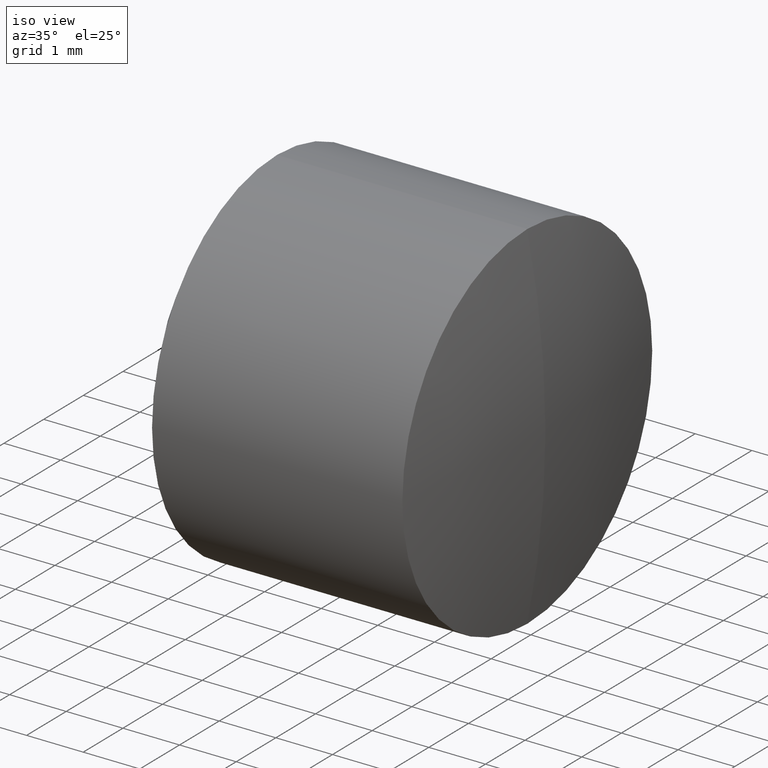
[diagram: clean part render]
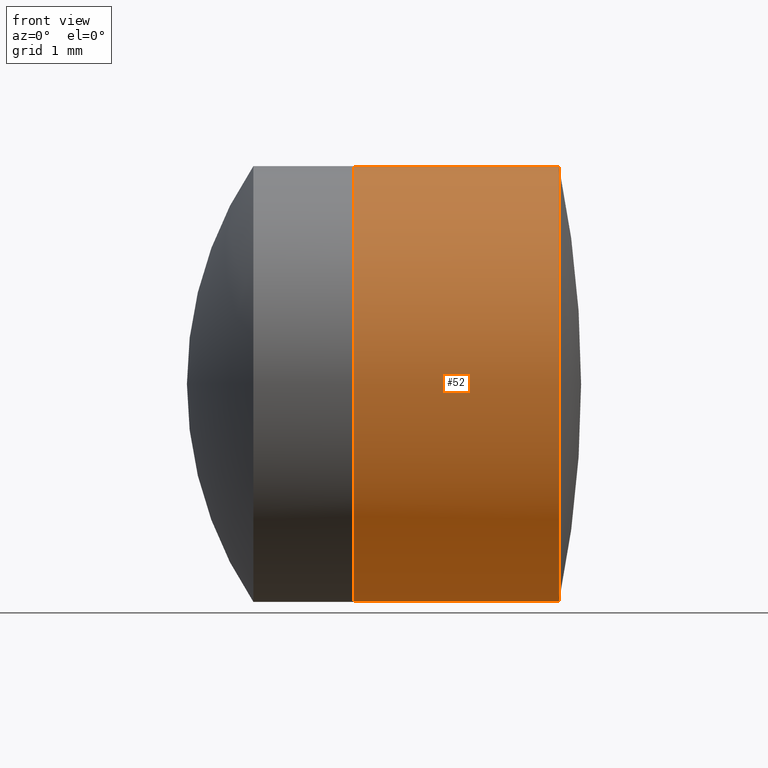
[diagram: tour spotlight — one face highlighted and labeled with its STEP entity id]
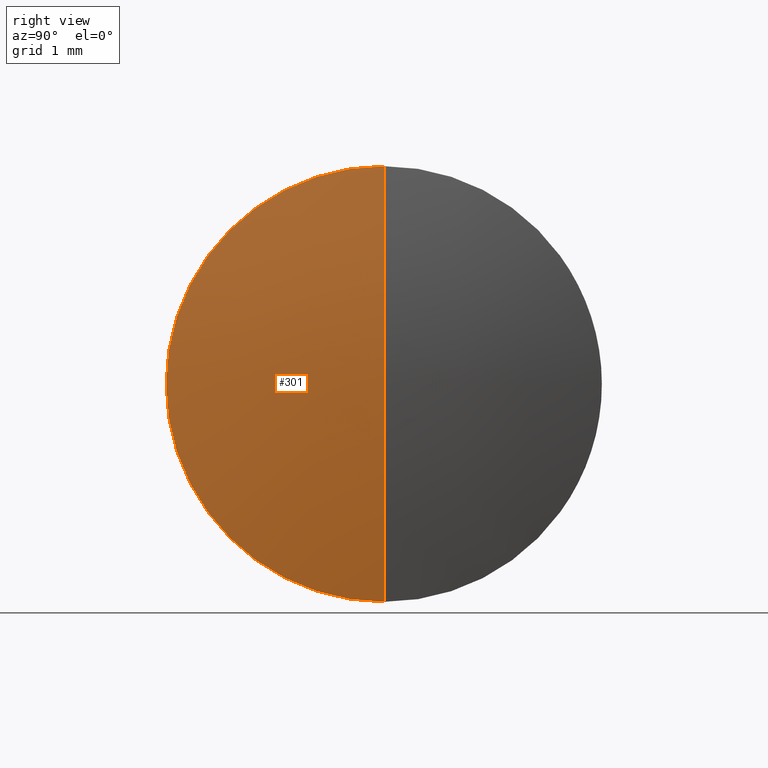
[diagram: tour spotlight — one face highlighted and labeled with its STEP entity id]
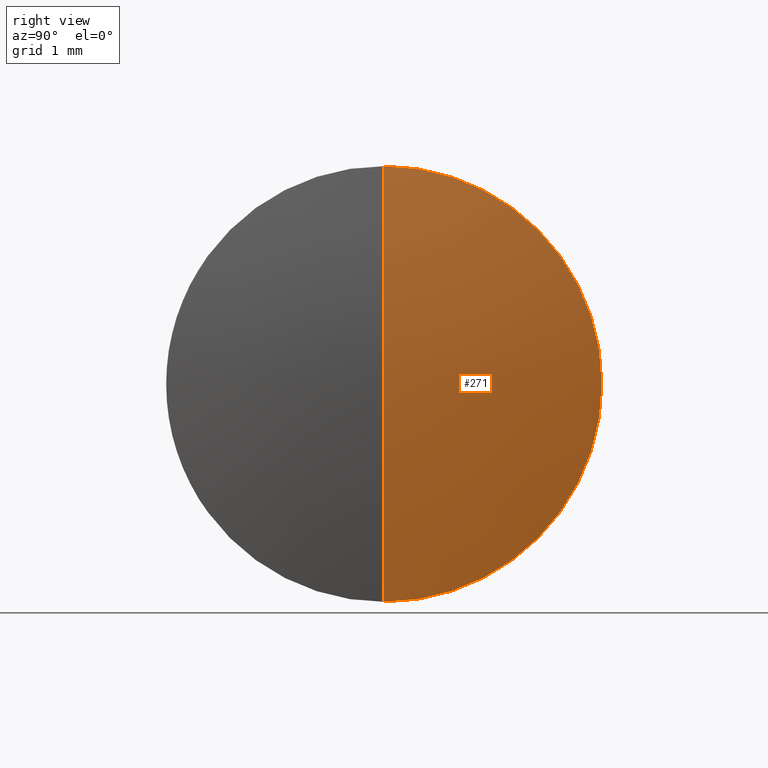
[diagram: tour spotlight — one face highlighted and labeled with its STEP entity id]
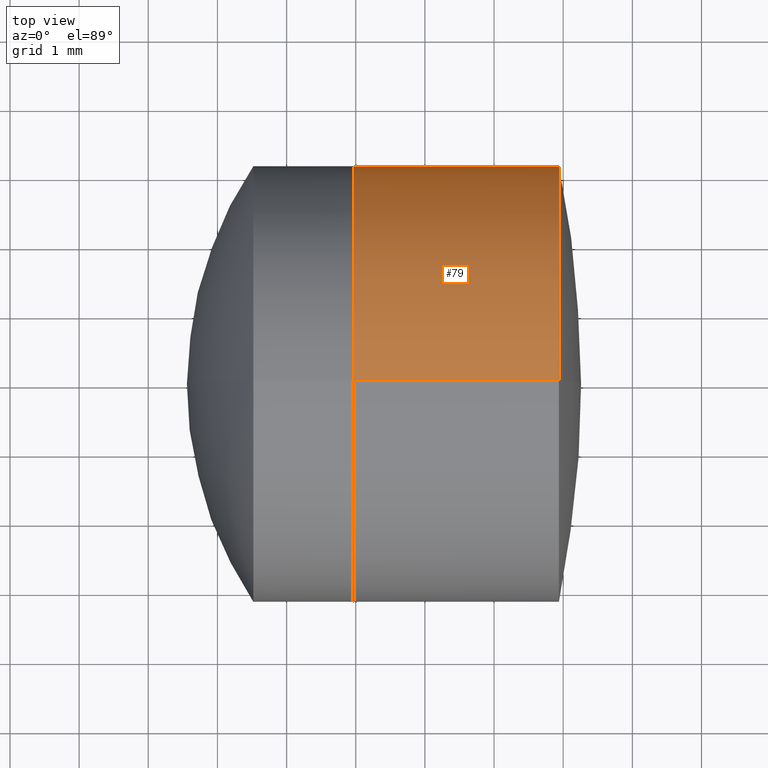
[diagram: tour spotlight — one face highlighted and labeled with its STEP entity id]
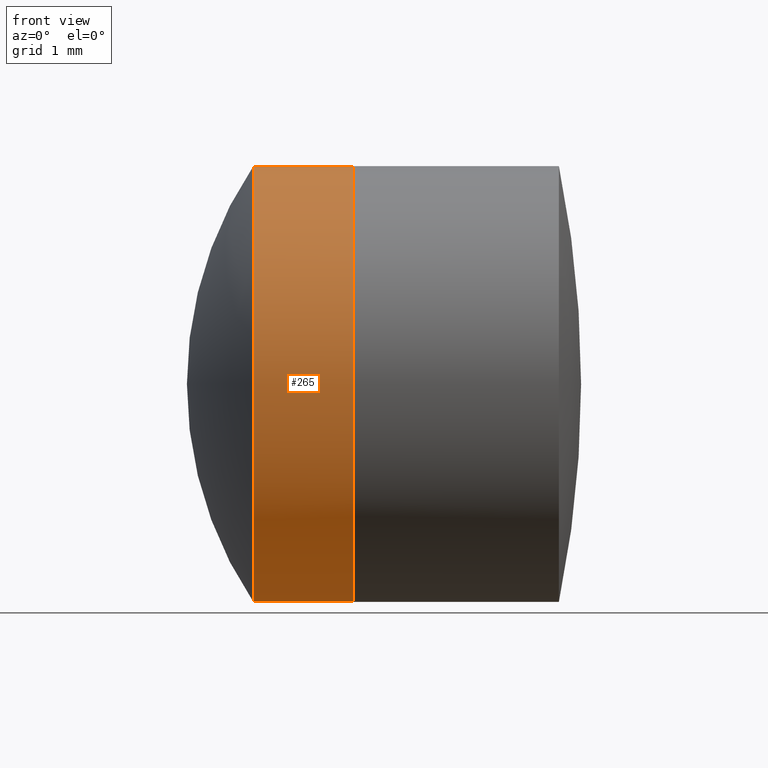
[diagram: tour spotlight — one face highlighted and labeled with its STEP entity id]
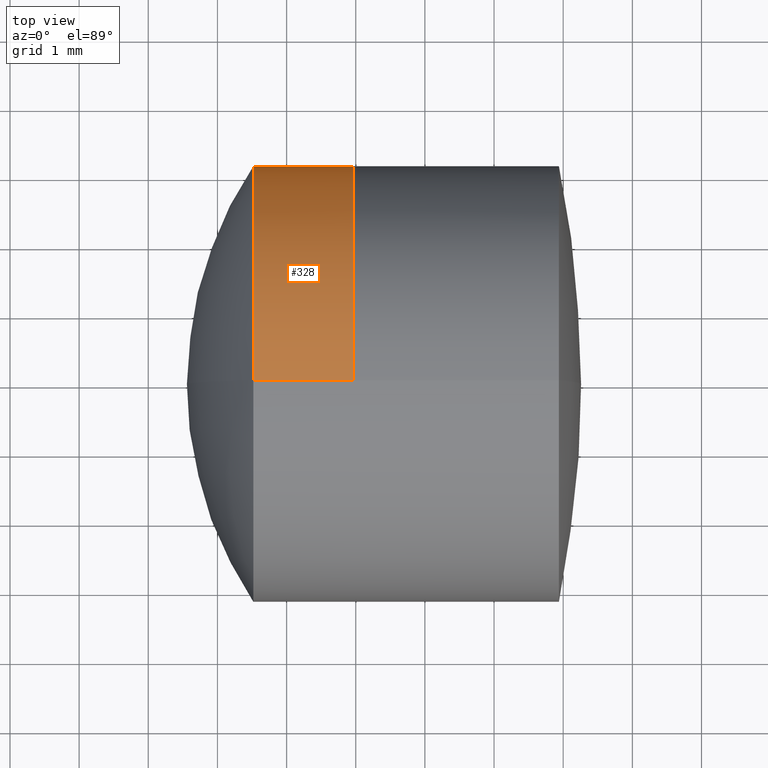
[diagram: tour spotlight — one face highlighted and labeled with its STEP entity id]
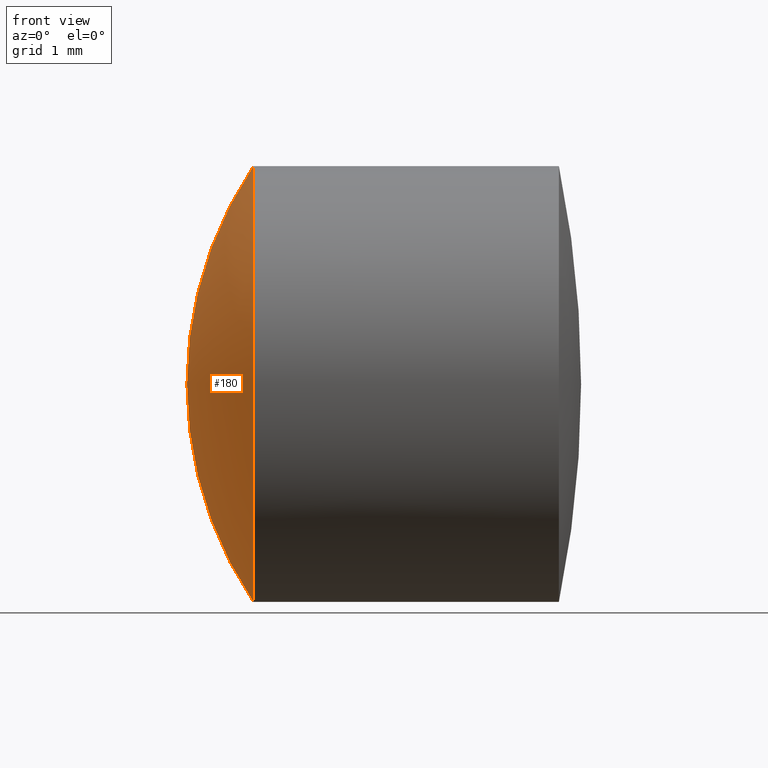
[diagram: tour spotlight — one face highlighted and labeled with its STEP entity id]
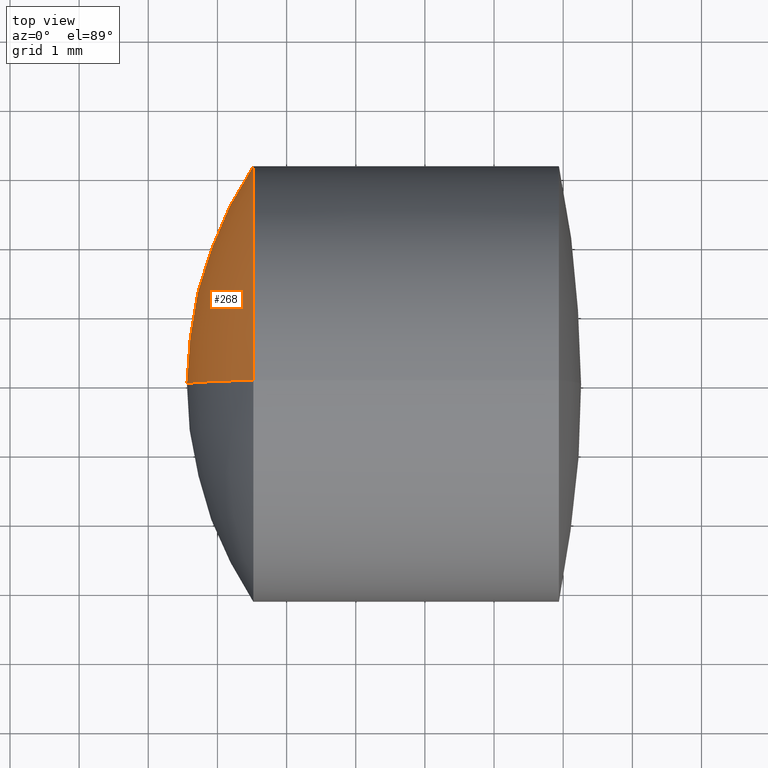
[diagram: tour spotlight — one face highlighted and labeled with its STEP entity id]
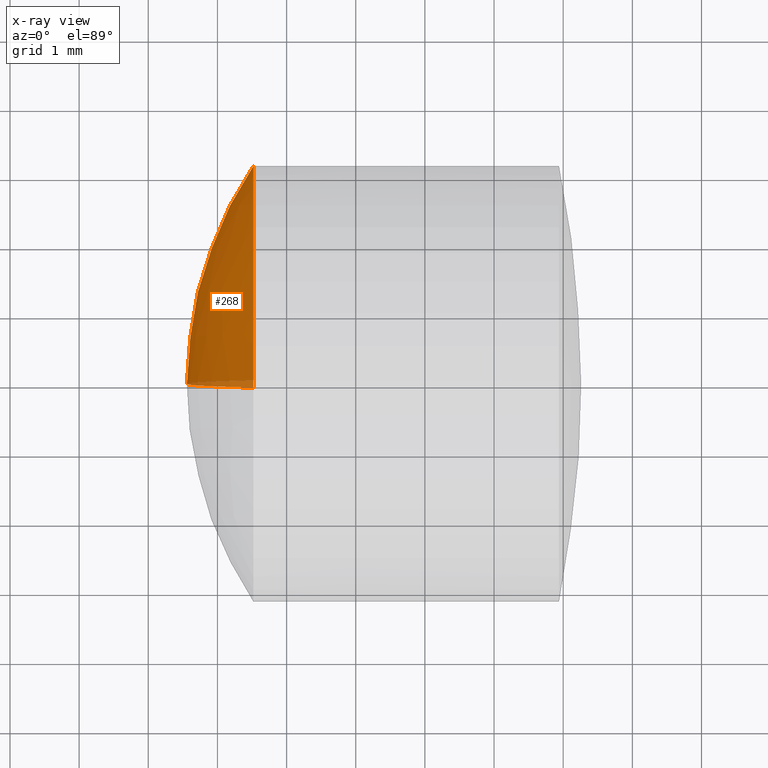
[diagram: x-ray of the same camera — body ghosted, this tour face saturated]
A machine part: a face-by-face anatomy tour. The part has 12 B-rep faces; the first image is the clean iso view, then the 8 largest visible faces are spotlighted one at a time (largest first), each with its STEP entity span.

Face 1 — front view, entity #52. In plain terms, the highlighted cylindrical surface (partial cylindrical patch) has radius 3.15 mm, axis along (-1, -0, -0).
Definition (entity closure, byte-faithful):
#23 = CYLINDRICAL_SURFACE ( 'NONE', #291, 3.150000000000000800 ) ;
#27 = EDGE_LOOP ( 'NONE', ( #131, #110, #115, #69 ) ) ;
#28 = LINE ( 'NONE', #72, #119 ) ;
#49 = DIRECTION ( 'NONE',  ( -1.000000000000000000, -0.0000000000000000000, -0.0000000000000000000 ) ) ;
#50 = CARTESIAN_POINT ( 'NONE',  ( 5.937916583646074100, 3.857637417314163200E-016, -3.150000000000000400 ) ) ;
#52 = ADVANCED_FACE ( 'NONE', ( #247 ), #23, .T. ) ;
#56 = DIRECTION ( 'NONE',  ( -1.000000000000000000, -0.0000000000000000000, -0.0000000000000000000 ) ) ;
#69 = ORIENTED_EDGE ( 'NONE', *, *, #298, .F. ) ;
#72 = CARTESIAN_POINT ( 'NONE',  ( -0.5519199926577972300, 0.0000000000000000000, 3.150000000000000800 ) ) ;
#87 = AXIS2_PLACEMENT_3D ( 'NONE', #121, #323, #155 ) ;
#92 = CARTESIAN_POINT ( 'NONE',  ( 2.966073281700091900, 3.857637417314163700E-016, -3.150000000000000800 ) ) ;
#104 = VERTEX_POINT ( 'NONE', #188 ) ;
#109 = EDGE_CURVE ( 'NONE', #334, #176, #171, .T. ) ;
#110 = ORIENTED_EDGE ( 'NONE', *, *, #269, .T. ) ;
#115 = ORIENTED_EDGE ( 'NONE', *, *, #251, .T. ) ;
#119 = VECTOR ( 'NONE', #223, 1000.000000000000000 ) ;
#121 = CARTESIAN_POINT ( 'NONE',  ( 5.937916583646074100, 0.0000000000000000000, 0.0000000000000000000 ) ) ;
#131 = ORIENTED_EDGE ( 'NONE', *, *, #109, .F. ) ;
#142 = DIRECTION ( 'NONE',  ( -1.000000000000000000, -0.0000000000000000000, -0.0000000000000000000 ) ) ;
#155 = DIRECTION ( 'NONE',  ( 0.0000000000000000000, 0.0000000000000000000, 1.000000000000000000 ) ) ;
#162 = AXIS2_PLACEMENT_3D ( 'NONE', #203, #49, #237 ) ;
#167 = CARTESIAN_POINT ( 'NONE',  ( -0.5519199926577972300, 3.857637417314163700E-016, -3.150000000000000800 ) ) ;
#171 = LINE ( 'NONE', #167, #184 ) ;
#172 = CARTESIAN_POINT ( 'NONE',  ( -0.5519199926577972300, 0.0000000000000000000, 0.0000000000000000000 ) ) ;
#176 = VERTEX_POINT ( 'NONE', #92 ) ;
#184 = VECTOR ( 'NONE', #142, 1000.000000000000000 ) ;
#188 = CARTESIAN_POINT ( 'NONE',  ( 5.937916583646074100, 0.0000000000000000000, 3.150000000000000400 ) ) ;
#203 = CARTESIAN_POINT ( 'NONE',  ( 2.966073281700091900, 0.0000000000000000000, 0.0000000000000000000 ) ) ;
#207 = VERTEX_POINT ( 'NONE', #337 ) ;
#211 = CIRCLE ( 'NONE', #162, 3.150000000000000800 ) ;
#220 = CIRCLE ( 'NONE', #87, 3.150000000000000400 ) ;
#223 = DIRECTION ( 'NONE',  ( -1.000000000000000000, -0.0000000000000000000, -0.0000000000000000000 ) ) ;
#237 = DIRECTION ( 'NONE',  ( 0.0000000000000000000, 0.0000000000000000000, 1.000000000000000000 ) ) ;
#247 = FACE_OUTER_BOUND ( 'NONE', #27, .T. ) ;
#251 = EDGE_CURVE ( 'NONE', #104, #207, #28, .T. ) ;
#258 = DIRECTION ( 'NONE',  ( 0.0000000000000000000, 0.0000000000000000000, 1.000000000000000000 ) ) ;
#269 = EDGE_CURVE ( 'NONE', #334, #104, #220, .T. ) ;
#291 = AXIS2_PLACEMENT_3D ( 'NONE', #172, #56, #258 ) ;
#298 = EDGE_CURVE ( 'NONE', #176, #207, #211, .T. ) ;
#323 = DIRECTION ( 'NONE',  ( -1.000000000000000000, -0.0000000000000000000, -0.0000000000000000000 ) ) ;
#334 = VERTEX_POINT ( 'NONE', #50 ) ;
#337 = CARTESIAN_POINT ( 'NONE',  ( 2.966073281700091900, 0.0000000000000000000, 3.150000000000000800 ) ) ;

Face 2 — right view, entity #301. In plain terms, the highlighted spherical surface has radius 15.631 mm.
Definition (entity closure, byte-faithful):
#6 = VERTEX_POINT ( 'NONE', #38 ) ;
#17 = CARTESIAN_POINT ( 'NONE',  ( -9.372395660067310200, 0.0000000000000000000, 0.0000000000000000000 ) ) ;
#22 = DIRECTION ( 'NONE',  ( 0.0000000000000000000, 1.000000000000000000, 0.0000000000000000000 ) ) ;
#38 = CARTESIAN_POINT ( 'NONE',  ( 6.258604339932689200, 0.0000000000000000000, 9.571227058736139200E-016 ) ) ;
#47 = DIRECTION ( 'NONE',  ( 0.0000000000000000000, -1.224646799147353500E-016, 1.000000000000000000 ) ) ;
#50 = CARTESIAN_POINT ( 'NONE',  ( 5.937916583646074100, 3.857637417314163200E-016, -3.150000000000000400 ) ) ;
#53 = AXIS2_PLACEMENT_3D ( 'NONE', #261, #97, #292 ) ;
#73 = ORIENTED_EDGE ( 'NONE', *, *, #269, .F. ) ;
#75 = DIRECTION ( 'NONE',  ( 0.0000000000000000000, 0.0000000000000000000, 1.000000000000000000 ) ) ;
#80 = FACE_OUTER_BOUND ( 'NONE', #221, .T. ) ;
#87 = AXIS2_PLACEMENT_3D ( 'NONE', #121, #323, #155 ) ;
#90 = ORIENTED_EDGE ( 'NONE', *, *, #245, .F. ) ;
#97 = DIRECTION ( 'NONE',  ( 0.0000000000000000000, -1.000000000000000000, 0.0000000000000000000 ) ) ;
#104 = VERTEX_POINT ( 'NONE', #188 ) ;
#121 = CARTESIAN_POINT ( 'NONE',  ( 5.937916583646074100, 0.0000000000000000000, 0.0000000000000000000 ) ) ;
#122 = CARTESIAN_POINT ( 'NONE',  ( -9.372395660067310200, 0.0000000000000000000, 0.0000000000000000000 ) ) ;
#155 = DIRECTION ( 'NONE',  ( 0.0000000000000000000, 0.0000000000000000000, 1.000000000000000000 ) ) ;
#187 = AXIS2_PLACEMENT_3D ( 'NONE', #122, #22, #75 ) ;
#188 = CARTESIAN_POINT ( 'NONE',  ( 5.937916583646074100, 0.0000000000000000000, 3.150000000000000400 ) ) ;
#198 = CIRCLE ( 'NONE', #53, 15.63099999999999800 ) ;
#199 = DIRECTION ( 'NONE',  ( -0.0000000000000000000, 1.000000000000000000, 1.224646799147353200E-016 ) ) ;
#201 = SPHERICAL_SURFACE ( 'NONE', #187, 15.63099999999999800 ) ;
#204 = CIRCLE ( 'NONE', #242, 15.63099999999999800 ) ;
#220 = CIRCLE ( 'NONE', #87, 3.150000000000000400 ) ;
#221 = EDGE_LOOP ( 'NONE', ( #90, #295, #73 ) ) ;
#242 = AXIS2_PLACEMENT_3D ( 'NONE', #17, #199, #47 ) ;
#245 = EDGE_CURVE ( 'NONE', #6, #334, #204, .T. ) ;
#246 = EDGE_CURVE ( 'NONE', #6, #104, #198, .T. ) ;
#261 = CARTESIAN_POINT ( 'NONE',  ( -9.372395660067310200, 0.0000000000000000000, 0.0000000000000000000 ) ) ;
#269 = EDGE_CURVE ( 'NONE', #334, #104, #220, .T. ) ;
#292 = DIRECTION ( 'NONE',  ( 0.0000000000000000000, 0.0000000000000000000, -1.000000000000000000 ) ) ;
#295 = ORIENTED_EDGE ( 'NONE', *, *, #246, .T. ) ;
#301 = ADVANCED_FACE ( 'NONE', ( #80 ), #201, .T. ) ;
#323 = DIRECTION ( 'NONE',  ( -1.000000000000000000, -0.0000000000000000000, -0.0000000000000000000 ) ) ;
#334 = VERTEX_POINT ( 'NONE', #50 ) ;

Face 3 — right view, entity #271. In plain terms, the highlighted spherical surface has radius 15.631 mm.
Definition (entity closure, byte-faithful):
#6 = VERTEX_POINT ( 'NONE', #38 ) ;
#9 = SPHERICAL_SURFACE ( 'NONE', #140, 15.63099999999999800 ) ;
#17 = CARTESIAN_POINT ( 'NONE',  ( -9.372395660067310200, 0.0000000000000000000, 0.0000000000000000000 ) ) ;
#38 = CARTESIAN_POINT ( 'NONE',  ( 6.258604339932689200, 0.0000000000000000000, 9.571227058736139200E-016 ) ) ;
#47 = DIRECTION ( 'NONE',  ( 0.0000000000000000000, -1.224646799147353500E-016, 1.000000000000000000 ) ) ;
#50 = CARTESIAN_POINT ( 'NONE',  ( 5.937916583646074100, 3.857637417314163200E-016, -3.150000000000000400 ) ) ;
#53 = AXIS2_PLACEMENT_3D ( 'NONE', #261, #97, #292 ) ;
#55 = DIRECTION ( 'NONE',  ( -1.000000000000000000, -0.0000000000000000000, -0.0000000000000000000 ) ) ;
#78 = ORIENTED_EDGE ( 'NONE', *, *, #85, .F. ) ;
#85 = EDGE_CURVE ( 'NONE', #104, #334, #326, .T. ) ;
#86 = EDGE_LOOP ( 'NONE', ( #144, #196, #78 ) ) ;
#97 = DIRECTION ( 'NONE',  ( 0.0000000000000000000, -1.000000000000000000, 0.0000000000000000000 ) ) ;
#101 = CARTESIAN_POINT ( 'NONE',  ( -9.372395660067310200, 0.0000000000000000000, 0.0000000000000000000 ) ) ;
#104 = VERTEX_POINT ( 'NONE', #188 ) ;
#133 = CARTESIAN_POINT ( 'NONE',  ( 5.937916583646074100, 0.0000000000000000000, 0.0000000000000000000 ) ) ;
#135 = FACE_OUTER_BOUND ( 'NONE', #86, .T. ) ;
#140 = AXIS2_PLACEMENT_3D ( 'NONE', #101, #344, #346 ) ;
#144 = ORIENTED_EDGE ( 'NONE', *, *, #246, .F. ) ;
#161 = AXIS2_PLACEMENT_3D ( 'NONE', #133, #55, #250 ) ;
#188 = CARTESIAN_POINT ( 'NONE',  ( 5.937916583646074100, 0.0000000000000000000, 3.150000000000000400 ) ) ;
#196 = ORIENTED_EDGE ( 'NONE', *, *, #245, .T. ) ;
#198 = CIRCLE ( 'NONE', #53, 15.63099999999999800 ) ;
#199 = DIRECTION ( 'NONE',  ( -0.0000000000000000000, 1.000000000000000000, 1.224646799147353200E-016 ) ) ;
#204 = CIRCLE ( 'NONE', #242, 15.63099999999999800 ) ;
#242 = AXIS2_PLACEMENT_3D ( 'NONE', #17, #199, #47 ) ;
#245 = EDGE_CURVE ( 'NONE', #6, #334, #204, .T. ) ;
#246 = EDGE_CURVE ( 'NONE', #6, #104, #198, .T. ) ;
#250 = DIRECTION ( 'NONE',  ( 0.0000000000000000000, 0.0000000000000000000, 1.000000000000000000 ) ) ;
#261 = CARTESIAN_POINT ( 'NONE',  ( -9.372395660067310200, 0.0000000000000000000, 0.0000000000000000000 ) ) ;
#271 = ADVANCED_FACE ( 'NONE', ( #135 ), #9, .T. ) ;
#292 = DIRECTION ( 'NONE',  ( 0.0000000000000000000, 0.0000000000000000000, -1.000000000000000000 ) ) ;
#326 = CIRCLE ( 'NONE', #161, 3.150000000000000400 ) ;
#334 = VERTEX_POINT ( 'NONE', #50 ) ;
#344 = DIRECTION ( 'NONE',  ( 0.0000000000000000000, 1.000000000000000000, 0.0000000000000000000 ) ) ;
#346 = DIRECTION ( 'NONE',  ( 0.0000000000000000000, 0.0000000000000000000, 1.000000000000000000 ) ) ;

Face 4 — top view, entity #79. In plain terms, the highlighted cylindrical surface (partial cylindrical patch) has radius 3.15 mm, axis along (-1, -0, -0).
Definition (entity closure, byte-faithful):
#14 = DIRECTION ( 'NONE',  ( -1.000000000000000000, -0.0000000000000000000, -0.0000000000000000000 ) ) ;
#28 = LINE ( 'NONE', #72, #119 ) ;
#37 = CYLINDRICAL_SURFACE ( 'NONE', #158, 3.150000000000000800 ) ;
#50 = CARTESIAN_POINT ( 'NONE',  ( 5.937916583646074100, 3.857637417314163200E-016, -3.150000000000000400 ) ) ;
#55 = DIRECTION ( 'NONE',  ( -1.000000000000000000, -0.0000000000000000000, -0.0000000000000000000 ) ) ;
#72 = CARTESIAN_POINT ( 'NONE',  ( -0.5519199926577972300, 0.0000000000000000000, 3.150000000000000800 ) ) ;
#79 = ADVANCED_FACE ( 'NONE', ( #316 ), #37, .T. ) ;
#85 = EDGE_CURVE ( 'NONE', #104, #334, #326, .T. ) ;
#92 = CARTESIAN_POINT ( 'NONE',  ( 2.966073281700091900, 3.857637417314163700E-016, -3.150000000000000800 ) ) ;
#104 = VERTEX_POINT ( 'NONE', #188 ) ;
#109 = EDGE_CURVE ( 'NONE', #334, #176, #171, .T. ) ;
#116 = DIRECTION ( 'NONE',  ( -1.000000000000000000, -0.0000000000000000000, -0.0000000000000000000 ) ) ;
#119 = VECTOR ( 'NONE', #223, 1000.000000000000000 ) ;
#133 = CARTESIAN_POINT ( 'NONE',  ( 5.937916583646074100, 0.0000000000000000000, 0.0000000000000000000 ) ) ;
#142 = DIRECTION ( 'NONE',  ( -1.000000000000000000, -0.0000000000000000000, -0.0000000000000000000 ) ) ;
#158 = AXIS2_PLACEMENT_3D ( 'NONE', #227, #14, #173 ) ;
#161 = AXIS2_PLACEMENT_3D ( 'NONE', #133, #55, #250 ) ;
#167 = CARTESIAN_POINT ( 'NONE',  ( -0.5519199926577972300, 3.857637417314163700E-016, -3.150000000000000800 ) ) ;
#171 = LINE ( 'NONE', #167, #184 ) ;
#173 = DIRECTION ( 'NONE',  ( 0.0000000000000000000, 0.0000000000000000000, 1.000000000000000000 ) ) ;
#176 = VERTEX_POINT ( 'NONE', #92 ) ;
#177 = ORIENTED_EDGE ( 'NONE', *, *, #251, .F. ) ;
#184 = VECTOR ( 'NONE', #142, 1000.000000000000000 ) ;
#188 = CARTESIAN_POINT ( 'NONE',  ( 5.937916583646074100, 0.0000000000000000000, 3.150000000000000400 ) ) ;
#190 = DIRECTION ( 'NONE',  ( 0.0000000000000000000, 0.0000000000000000000, 1.000000000000000000 ) ) ;
#202 = ORIENTED_EDGE ( 'NONE', *, *, #85, .T. ) ;
#207 = VERTEX_POINT ( 'NONE', #337 ) ;
#214 = EDGE_CURVE ( 'NONE', #207, #176, #262, .T. ) ;
#223 = DIRECTION ( 'NONE',  ( -1.000000000000000000, -0.0000000000000000000, -0.0000000000000000000 ) ) ;
#227 = CARTESIAN_POINT ( 'NONE',  ( -0.5519199926577972300, 0.0000000000000000000, 0.0000000000000000000 ) ) ;
#244 = ORIENTED_EDGE ( 'NONE', *, *, #214, .F. ) ;
#250 = DIRECTION ( 'NONE',  ( 0.0000000000000000000, 0.0000000000000000000, 1.000000000000000000 ) ) ;
#251 = EDGE_CURVE ( 'NONE', #104, #207, #28, .T. ) ;
#260 = EDGE_LOOP ( 'NONE', ( #202, #330, #244, #177 ) ) ;
#262 = CIRCLE ( 'NONE', #319, 3.150000000000000800 ) ;
#289 = CARTESIAN_POINT ( 'NONE',  ( 2.966073281700091900, 0.0000000000000000000, 0.0000000000000000000 ) ) ;
#316 = FACE_OUTER_BOUND ( 'NONE', #260, .T. ) ;
#319 = AXIS2_PLACEMENT_3D ( 'NONE', #289, #116, #190 ) ;
#326 = CIRCLE ( 'NONE', #161, 3.150000000000000400 ) ;
#330 = ORIENTED_EDGE ( 'NONE', *, *, #109, .T. ) ;
#334 = VERTEX_POINT ( 'NONE', #50 ) ;
#337 = CARTESIAN_POINT ( 'NONE',  ( 2.966073281700091900, 0.0000000000000000000, 3.150000000000000800 ) ) ;

Face 5 — front view, entity #265. In plain terms, the highlighted cylindrical surface (partial cylindrical patch) has radius 3.15 mm, axis along (-1, -0, -0).
Definition (entity closure, byte-faithful):
#4 = AXIS2_PLACEMENT_3D ( 'NONE', #114, #317, #146 ) ;
#59 = DIRECTION ( 'NONE',  ( 0.0000000000000000000, 0.0000000000000000000, 1.000000000000000000 ) ) ;
#62 = VECTOR ( 'NONE', #325, 1000.000000000000000 ) ;
#74 = CARTESIAN_POINT ( 'NONE',  ( -0.8160621761658039000, 3.857637417314162700E-016, -3.149999999999999900 ) ) ;
#89 = CARTESIAN_POINT ( 'NONE',  ( 1.519212703871500900, 0.0000000000000000000, 0.0000000000000000000 ) ) ;
#100 = EDGE_CURVE ( 'NONE', #272, #279, #278, .T. ) ;
#103 = EDGE_CURVE ( 'NONE', #185, #279, #147, .T. ) ;
#106 = AXIS2_PLACEMENT_3D ( 'NONE', #120, #322, #320 ) ;
#114 = CARTESIAN_POINT ( 'NONE',  ( 2.966073281700092800, 0.0000000000000000000, 0.0000000000000000000 ) ) ;
#120 = CARTESIAN_POINT ( 'NONE',  ( -0.8160621761658039000, 0.0000000000000000000, 0.0000000000000000000 ) ) ;
#125 = AXIS2_PLACEMENT_3D ( 'NONE', #89, #255, #59 ) ;
#127 = ORIENTED_EDGE ( 'NONE', *, *, #200, .T. ) ;
#129 = EDGE_LOOP ( 'NONE', ( #310, #127, #163, #342 ) ) ;
#138 = VECTOR ( 'NONE', #141, 1000.000000000000000 ) ;
#141 = DIRECTION ( 'NONE',  ( -1.000000000000000000, -0.0000000000000000000, -0.0000000000000000000 ) ) ;
#146 = DIRECTION ( 'NONE',  ( 0.0000000000000000000, 0.0000000000000000000, 1.000000000000000000 ) ) ;
#147 = LINE ( 'NONE', #339, #138 ) ;
#153 = LINE ( 'NONE', #74, #62 ) ;
#163 = ORIENTED_EDGE ( 'NONE', *, *, #103, .T. ) ;
#169 = CYLINDRICAL_SURFACE ( 'NONE', #106, 3.149999999999999900 ) ;
#182 = FACE_OUTER_BOUND ( 'NONE', #129, .T. ) ;
#185 = VERTEX_POINT ( 'NONE', #257 ) ;
#192 = CARTESIAN_POINT ( 'NONE',  ( 2.966073281700092800, 3.857637417314162700E-016, -3.149999999999999900 ) ) ;
#200 = EDGE_CURVE ( 'NONE', #210, #185, #224, .T. ) ;
#210 = VERTEX_POINT ( 'NONE', #192 ) ;
#224 = CIRCLE ( 'NONE', #4, 3.149999999999999900 ) ;
#235 = CARTESIAN_POINT ( 'NONE',  ( 1.519212703871501300, 0.0000000000000000000, 3.150000000000000400 ) ) ;
#255 = DIRECTION ( 'NONE',  ( -1.000000000000000000, -0.0000000000000000000, -0.0000000000000000000 ) ) ;
#257 = CARTESIAN_POINT ( 'NONE',  ( 2.966073281700092800, 0.0000000000000000000, 3.149999999999999900 ) ) ;
#265 = ADVANCED_FACE ( 'NONE', ( #182 ), #169, .T. ) ;
#272 = VERTEX_POINT ( 'NONE', #294 ) ;
#278 = CIRCLE ( 'NONE', #125, 3.149999999999999900 ) ;
#279 = VERTEX_POINT ( 'NONE', #235 ) ;
#284 = EDGE_CURVE ( 'NONE', #210, #272, #153, .T. ) ;
#294 = CARTESIAN_POINT ( 'NONE',  ( 1.519212703871501300, 3.857637417314163200E-016, -3.150000000000000400 ) ) ;
#310 = ORIENTED_EDGE ( 'NONE', *, *, #284, .F. ) ;
#317 = DIRECTION ( 'NONE',  ( -1.000000000000000000, -0.0000000000000000000, -0.0000000000000000000 ) ) ;
#320 = DIRECTION ( 'NONE',  ( 0.0000000000000000000, 0.0000000000000000000, 1.000000000000000000 ) ) ;
#322 = DIRECTION ( 'NONE',  ( -1.000000000000000000, -0.0000000000000000000, -0.0000000000000000000 ) ) ;
#325 = DIRECTION ( 'NONE',  ( -1.000000000000000000, -0.0000000000000000000, -0.0000000000000000000 ) ) ;
#339 = CARTESIAN_POINT ( 'NONE',  ( -0.8160621761658039000, 0.0000000000000000000, 3.149999999999999900 ) ) ;
#342 = ORIENTED_EDGE ( 'NONE', *, *, #100, .F. ) ;

Face 6 — top view, entity #328. In plain terms, the highlighted cylindrical surface (partial cylindrical patch) has radius 3.15 mm, axis along (-1, -0, -0).
Definition (entity closure, byte-faithful):
#3 = ORIENTED_EDGE ( 'NONE', *, *, #20, .T. ) ;
#10 = ORIENTED_EDGE ( 'NONE', *, *, #183, .F. ) ;
#20 = EDGE_CURVE ( 'NONE', #185, #210, #229, .T. ) ;
#40 = CARTESIAN_POINT ( 'NONE',  ( 1.519212703871500900, 0.0000000000000000000, 0.0000000000000000000 ) ) ;
#62 = VECTOR ( 'NONE', #325, 1000.000000000000000 ) ;
#63 = AXIS2_PLACEMENT_3D ( 'NONE', #66, #254, #281 ) ;
#66 = CARTESIAN_POINT ( 'NONE',  ( 2.966073281700092800, 0.0000000000000000000, 0.0000000000000000000 ) ) ;
#67 = DIRECTION ( 'NONE',  ( 0.0000000000000000000, 0.0000000000000000000, 1.000000000000000000 ) ) ;
#74 = CARTESIAN_POINT ( 'NONE',  ( -0.8160621761658039000, 3.857637417314162700E-016, -3.149999999999999900 ) ) ;
#103 = EDGE_CURVE ( 'NONE', #185, #279, #147, .T. ) ;
#123 = DIRECTION ( 'NONE',  ( 0.0000000000000000000, 0.0000000000000000000, 1.000000000000000000 ) ) ;
#138 = VECTOR ( 'NONE', #141, 1000.000000000000000 ) ;
#141 = DIRECTION ( 'NONE',  ( -1.000000000000000000, -0.0000000000000000000, -0.0000000000000000000 ) ) ;
#147 = LINE ( 'NONE', #339, #138 ) ;
#153 = LINE ( 'NONE', #74, #62 ) ;
#166 = AXIS2_PLACEMENT_3D ( 'NONE', #40, #228, #67 ) ;
#181 = ORIENTED_EDGE ( 'NONE', *, *, #103, .F. ) ;
#183 = EDGE_CURVE ( 'NONE', #279, #272, #324, .T. ) ;
#185 = VERTEX_POINT ( 'NONE', #257 ) ;
#189 = CYLINDRICAL_SURFACE ( 'NONE', #274, 3.149999999999999900 ) ;
#192 = CARTESIAN_POINT ( 'NONE',  ( 2.966073281700092800, 3.857637417314162700E-016, -3.149999999999999900 ) ) ;
#210 = VERTEX_POINT ( 'NONE', #192 ) ;
#215 = EDGE_LOOP ( 'NONE', ( #3, #306, #10, #181 ) ) ;
#228 = DIRECTION ( 'NONE',  ( -1.000000000000000000, -0.0000000000000000000, -0.0000000000000000000 ) ) ;
#229 = CIRCLE ( 'NONE', #63, 3.149999999999999900 ) ;
#235 = CARTESIAN_POINT ( 'NONE',  ( 1.519212703871501300, 0.0000000000000000000, 3.150000000000000400 ) ) ;
#254 = DIRECTION ( 'NONE',  ( -1.000000000000000000, -0.0000000000000000000, -0.0000000000000000000 ) ) ;
#257 = CARTESIAN_POINT ( 'NONE',  ( 2.966073281700092800, 0.0000000000000000000, 3.149999999999999900 ) ) ;
#264 = CARTESIAN_POINT ( 'NONE',  ( -0.8160621761658039000, 0.0000000000000000000, 0.0000000000000000000 ) ) ;
#272 = VERTEX_POINT ( 'NONE', #294 ) ;
#274 = AXIS2_PLACEMENT_3D ( 'NONE', #264, #297, #123 ) ;
#279 = VERTEX_POINT ( 'NONE', #235 ) ;
#281 = DIRECTION ( 'NONE',  ( 0.0000000000000000000, 0.0000000000000000000, 1.000000000000000000 ) ) ;
#284 = EDGE_CURVE ( 'NONE', #210, #272, #153, .T. ) ;
#294 = CARTESIAN_POINT ( 'NONE',  ( 1.519212703871501300, 3.857637417314163200E-016, -3.150000000000000400 ) ) ;
#297 = DIRECTION ( 'NONE',  ( -1.000000000000000000, -0.0000000000000000000, -0.0000000000000000000 ) ) ;
#306 = ORIENTED_EDGE ( 'NONE', *, *, #284, .T. ) ;
#324 = CIRCLE ( 'NONE', #166, 3.149999999999999900 ) ;
#325 = DIRECTION ( 'NONE',  ( -1.000000000000000000, -0.0000000000000000000, -0.0000000000000000000 ) ) ;
#328 = ADVANCED_FACE ( 'NONE', ( #347 ), #189, .T. ) ;
#339 = CARTESIAN_POINT ( 'NONE',  ( -0.8160621761658039000, 0.0000000000000000000, 3.149999999999999900 ) ) ;
#347 = FACE_OUTER_BOUND ( 'NONE', #215, .T. ) ;

Face 7 — front view, entity #180. In plain terms, the highlighted spherical surface has radius 5.645 mm.
Definition (entity closure, byte-faithful):
#5 = CIRCLE ( 'NONE', #118, 5.644999999999998700 ) ;
#11 = DIRECTION ( 'NONE',  ( 0.0000000000000000000, 1.000000000000000000, 0.0000000000000000000 ) ) ;
#29 = SPHERICAL_SURFACE ( 'NONE', #216, 5.644999999999998700 ) ;
#59 = DIRECTION ( 'NONE',  ( 0.0000000000000000000, 0.0000000000000000000, 1.000000000000000000 ) ) ;
#88 = CARTESIAN_POINT ( 'NONE',  ( 0.5586043399326868800, 0.0000000000000000000, 3.453436734331214600E-016 ) ) ;
#89 = CARTESIAN_POINT ( 'NONE',  ( 1.519212703871500900, 0.0000000000000000000, 0.0000000000000000000 ) ) ;
#94 = EDGE_CURVE ( 'NONE', #279, #149, #159, .T. ) ;
#99 = ORIENTED_EDGE ( 'NONE', *, *, #277, .F. ) ;
#100 = EDGE_CURVE ( 'NONE', #272, #279, #278, .T. ) ;
#102 = DIRECTION ( 'NONE',  ( -0.0000000000000000000, 1.000000000000000000, 1.224646799147353200E-016 ) ) ;
#108 = ORIENTED_EDGE ( 'NONE', *, *, #94, .T. ) ;
#111 = CARTESIAN_POINT ( 'NONE',  ( 6.203604339932685900, 0.0000000000000000000, -3.128856262189234900E-019 ) ) ;
#118 = AXIS2_PLACEMENT_3D ( 'NONE', #263, #102, #296 ) ;
#124 = EDGE_LOOP ( 'NONE', ( #99, #212, #108 ) ) ;
#125 = AXIS2_PLACEMENT_3D ( 'NONE', #89, #255, #59 ) ;
#143 = DIRECTION ( 'NONE',  ( 0.0000000000000000000, -1.000000000000000000, 0.0000000000000000000 ) ) ;
#149 = VERTEX_POINT ( 'NONE', #88 ) ;
#159 = CIRCLE ( 'NONE', #165, 5.644999999999998700 ) ;
#165 = AXIS2_PLACEMENT_3D ( 'NONE', #336, #143, #311 ) ;
#180 = ADVANCED_FACE ( 'NONE', ( #304 ), #29, .T. ) ;
#212 = ORIENTED_EDGE ( 'NONE', *, *, #100, .T. ) ;
#216 = AXIS2_PLACEMENT_3D ( 'NONE', #111, #11, #315 ) ;
#235 = CARTESIAN_POINT ( 'NONE',  ( 1.519212703871501300, 0.0000000000000000000, 3.150000000000000400 ) ) ;
#255 = DIRECTION ( 'NONE',  ( -1.000000000000000000, -0.0000000000000000000, -0.0000000000000000000 ) ) ;
#263 = CARTESIAN_POINT ( 'NONE',  ( 6.203604339932685900, 0.0000000000000000000, -3.128856262189234900E-019 ) ) ;
#272 = VERTEX_POINT ( 'NONE', #294 ) ;
#277 = EDGE_CURVE ( 'NONE', #272, #149, #5, .T. ) ;
#278 = CIRCLE ( 'NONE', #125, 3.149999999999999900 ) ;
#279 = VERTEX_POINT ( 'NONE', #235 ) ;
#294 = CARTESIAN_POINT ( 'NONE',  ( 1.519212703871501300, 3.857637417314163200E-016, -3.150000000000000400 ) ) ;
#296 = DIRECTION ( 'NONE',  ( 0.0000000000000000000, -1.224646799147353200E-016, 1.000000000000000000 ) ) ;
#304 = FACE_OUTER_BOUND ( 'NONE', #124, .T. ) ;
#311 = DIRECTION ( 'NONE',  ( 0.0000000000000000000, 0.0000000000000000000, -1.000000000000000000 ) ) ;
#315 = DIRECTION ( 'NONE',  ( 0.0000000000000000000, 0.0000000000000000000, 1.000000000000000000 ) ) ;
#336 = CARTESIAN_POINT ( 'NONE',  ( 6.203604339932685900, 0.0000000000000000000, -3.128856262189234900E-019 ) ) ;

Face 8 — top view, entity #268. An x-ray twin of the same camera follows (body ghosted, this face saturated) — the face is partly hidden behind the body. In plain terms, the highlighted spherical surface has radius 5.645 mm.
Definition (entity closure, byte-faithful):
#5 = CIRCLE ( 'NONE', #118, 5.644999999999998700 ) ;
#18 = CARTESIAN_POINT ( 'NONE',  ( 6.203604339932685900, 0.0000000000000000000, -3.128856262189234900E-019 ) ) ;
#40 = CARTESIAN_POINT ( 'NONE',  ( 1.519212703871500900, 0.0000000000000000000, 0.0000000000000000000 ) ) ;
#48 = DIRECTION ( 'NONE',  ( 0.0000000000000000000, 0.0000000000000000000, 1.000000000000000000 ) ) ;
#54 = ORIENTED_EDGE ( 'NONE', *, *, #94, .F. ) ;
#67 = DIRECTION ( 'NONE',  ( 0.0000000000000000000, 0.0000000000000000000, 1.000000000000000000 ) ) ;
#71 = AXIS2_PLACEMENT_3D ( 'NONE', #18, #232, #48 ) ;
#88 = CARTESIAN_POINT ( 'NONE',  ( 0.5586043399326868800, 0.0000000000000000000, 3.453436734331214600E-016 ) ) ;
#94 = EDGE_CURVE ( 'NONE', #279, #149, #159, .T. ) ;
#102 = DIRECTION ( 'NONE',  ( -0.0000000000000000000, 1.000000000000000000, 1.224646799147353200E-016 ) ) ;
#118 = AXIS2_PLACEMENT_3D ( 'NONE', #263, #102, #296 ) ;
#143 = DIRECTION ( 'NONE',  ( 0.0000000000000000000, -1.000000000000000000, 0.0000000000000000000 ) ) ;
#149 = VERTEX_POINT ( 'NONE', #88 ) ;
#159 = CIRCLE ( 'NONE', #165, 5.644999999999998700 ) ;
#165 = AXIS2_PLACEMENT_3D ( 'NONE', #336, #143, #311 ) ;
#166 = AXIS2_PLACEMENT_3D ( 'NONE', #40, #228, #67 ) ;
#183 = EDGE_CURVE ( 'NONE', #279, #272, #324, .T. ) ;
#186 = FACE_OUTER_BOUND ( 'NONE', #234, .T. ) ;
#228 = DIRECTION ( 'NONE',  ( -1.000000000000000000, -0.0000000000000000000, -0.0000000000000000000 ) ) ;
#232 = DIRECTION ( 'NONE',  ( 0.0000000000000000000, 1.000000000000000000, 0.0000000000000000000 ) ) ;
#234 = EDGE_LOOP ( 'NONE', ( #303, #252, #54 ) ) ;
#235 = CARTESIAN_POINT ( 'NONE',  ( 1.519212703871501300, 0.0000000000000000000, 3.150000000000000400 ) ) ;
#252 = ORIENTED_EDGE ( 'NONE', *, *, #277, .T. ) ;
#263 = CARTESIAN_POINT ( 'NONE',  ( 6.203604339932685900, 0.0000000000000000000, -3.128856262189234900E-019 ) ) ;
#268 = ADVANCED_FACE ( 'NONE', ( #186 ), #331, .T. ) ;
#272 = VERTEX_POINT ( 'NONE', #294 ) ;
#277 = EDGE_CURVE ( 'NONE', #272, #149, #5, .T. ) ;
#279 = VERTEX_POINT ( 'NONE', #235 ) ;
#294 = CARTESIAN_POINT ( 'NONE',  ( 1.519212703871501300, 3.857637417314163200E-016, -3.150000000000000400 ) ) ;
#296 = DIRECTION ( 'NONE',  ( 0.0000000000000000000, -1.224646799147353200E-016, 1.000000000000000000 ) ) ;
#303 = ORIENTED_EDGE ( 'NONE', *, *, #183, .T. ) ;
#311 = DIRECTION ( 'NONE',  ( 0.0000000000000000000, 0.0000000000000000000, -1.000000000000000000 ) ) ;
#324 = CIRCLE ( 'NONE', #166, 3.149999999999999900 ) ;
#331 = SPHERICAL_SURFACE ( 'NONE', #71, 5.644999999999998700 ) ;
#336 = CARTESIAN_POINT ( 'NONE',  ( 6.203604339932685900, 0.0000000000000000000, -3.128856262189234900E-019 ) ) ;